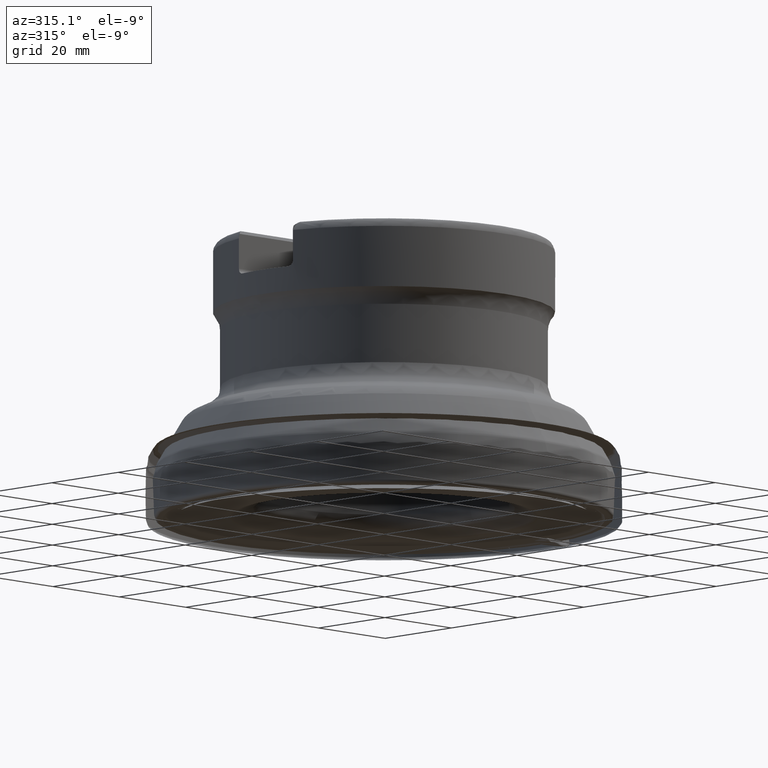
[diagram: clean part render]
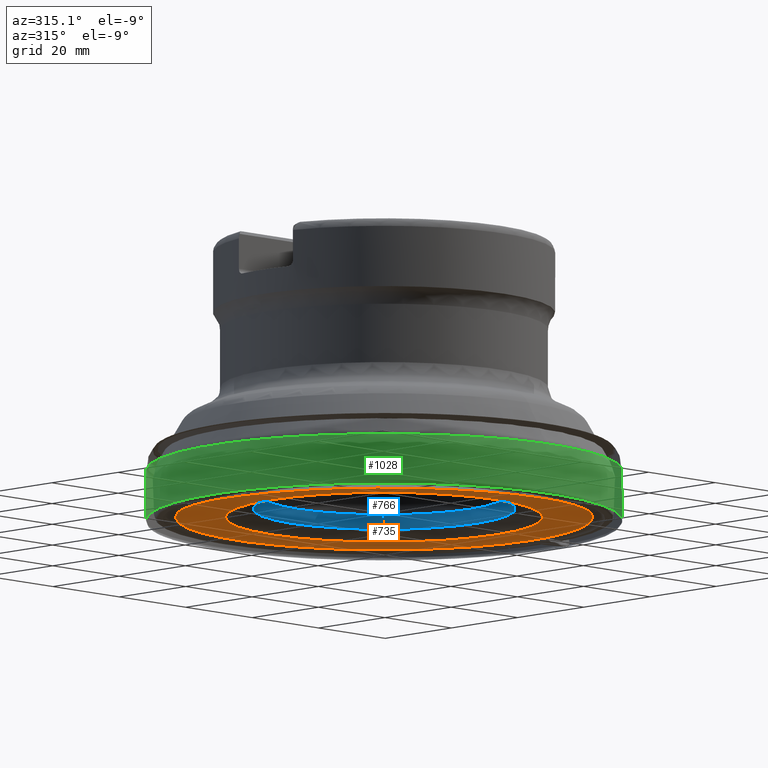
[diagram: same view with three faces highlighted in distinct colors, each labeled with its STEP entity id]
A machine part, auxiliary view with three faces highlighted in distinct colors.
Their STEP definitions:

[orange] entity #735 — the highlighted planar face has unit normal (0, -0, -1).
#430=FACE_BOUND('',#1319,.T.);
#431=FACE_BOUND('',#1320,.T.);
#580=CIRCLE('',#4607,46.0004528519196);
#581=CIRCLE('',#4608,33.8816349035423);
#735=ADVANCED_FACE('',(#430,#431),#1043,.T.);
#1043=PLANE('',#4609);
#1319=EDGE_LOOP('',(#1808));
#1320=EDGE_LOOP('',(#1809));
#1808=ORIENTED_EDGE('',*,*,#3500,.T.);
#1809=ORIENTED_EDGE('',*,*,#3501,.T.);
#3092=VERTEX_POINT('',#5809);
#3093=VERTEX_POINT('',#5811);
#3500=EDGE_CURVE('',#3092,#3092,#580,.T.);
#3501=EDGE_CURVE('',#3093,#3093,#581,.T.);
#4607=AXIS2_PLACEMENT_3D('',#5808,#4869,#4870);
#4608=AXIS2_PLACEMENT_3D('',#5810,#4871,#4872);
#4609=AXIS2_PLACEMENT_3D('',#5812,#4873,#4874);
#4869=DIRECTION('',(0.,-1.17145536458252E-15,-1.));
#4870=DIRECTION('',(0.,1.,-1.17375514461973E-15));
#4871=DIRECTION('',(0.,1.17145536458252E-15,1.));
#4872=DIRECTION('',(0.,1.,-1.17118904167227E-15));
#4873=DIRECTION('',(0.,-1.17145536458252E-15,-1.));
#4874=DIRECTION('',(0.,1.,-1.17137202715334E-15));
#5808=CARTESIAN_POINT('',(0.,1.64003751041553E-15,1.4));
#5809=CARTESIAN_POINT('',(0.,46.0004528519196,1.39999999999994));
#5810=CARTESIAN_POINT('',(0.,1.64003751041553E-15,1.4));
#5811=CARTESIAN_POINT('',(0.,33.8816349035423,1.39999999999996));
#5812=CARTESIAN_POINT('',(33.,1.64003751041553E-15,1.4));

[blue] entity #766 — the highlighted toroidal blend (fillet) surface has major radius 29 mm and minor (blend) radius 3 mm.
#472=FACE_BOUND('',#1371,.T.);
#473=FACE_BOUND('',#1372,.T.);
#559=TOROIDAL_SURFACE('',#4678,29.,3.);
#578=CIRCLE('',#4604,27.973939570023);
#603=CIRCLE('',#4646,26.);
#766=ADVANCED_FACE('',(#472,#473),#559,.T.);
#1371=EDGE_LOOP('',(#1905));
#1372=EDGE_LOOP('',(#1906));
#1905=ORIENTED_EDGE('',*,*,#3531,.F.);
#1906=ORIENTED_EDGE('',*,*,#3498,.F.);
#3090=VERTEX_POINT('',#5804);
#3117=VERTEX_POINT('',#5937);
#3498=EDGE_CURVE('',#3090,#3090,#578,.T.);
#3531=EDGE_CURVE('',#3117,#3117,#603,.T.);
#4604=AXIS2_PLACEMENT_3D('',#5803,#4863,#4864);
#4646=AXIS2_PLACEMENT_3D('',#5936,#4947,#4948);
#4678=AXIS2_PLACEMENT_3D('',#5991,#5019,#5020);
#4863=DIRECTION('',(0.,1.17145536458252E-15,1.));
#4864=DIRECTION('',(0.,1.,-1.17823040122955E-15));
#4947=DIRECTION('',(-5.85727682291262E-16,-1.17145536458252E-15,-1.));
#4948=DIRECTION('',(1.,-7.11112594850672E-31,-6.00481203222741E-16));
#5019=DIRECTION('',(-5.85727682291262E-16,-1.17145536458252E-15,-1.));
#5020=DIRECTION('',(1.,-6.74075480535533E-31,-5.96311194867027E-16));
#5803=CARTESIAN_POINT('',(-2.75680704173713E-16,3.78302344060791E-15,3.22933639213482));
#5804=CARTESIAN_POINT('',(-2.75680704173713E-16,27.973939570023,3.22933639213479));
#5936=CARTESIAN_POINT('',(7.0854473256427E-15,7.0854473256427E-15,6.04841425449255));
#5937=CARTESIAN_POINT('',(26.,7.08544732564268E-15,6.04841425449253));
#5991=CARTESIAN_POINT('',(1.37553123834368E-15,7.0854473256427E-15,6.04841425449255));

[green] entity #1028 — the highlighted face is a SurfaceOfRevolution surface.
#118=SURFACE_OF_REVOLUTION('',#4581,#139);
#139=AXIS1_PLACEMENT('',#17862,#5300);
#532=FACE_BOUND('',#1663,.T.);
#533=FACE_BOUND('',#1664,.T.);
#717=CIRCLE('',#4807,50.8);
#718=CIRCLE('',#4808,50.7999999448018);
#1028=ADVANCED_FACE('',(#532,#533),#118,.F.);
#1663=EDGE_LOOP('',(#3035));
#1664=EDGE_LOOP('',(#3036));
#3035=ORIENTED_EDGE('',*,*,#4098,.T.);
#3036=ORIENTED_EDGE('',*,*,#4099,.F.);
#3448=VERTEX_POINT('',#17837);
#3449=VERTEX_POINT('',#17847);
#4098=EDGE_CURVE('',#3448,#3448,#717,.T.);
#4099=EDGE_CURVE('',#3449,#3449,#718,.T.);
#4581=B_SPLINE_CURVE_WITH_KNOTS('',3,(#17848,#17849,#17850,#17851,#17852,
#17853,#17854,#17855,#17856,#17857,#17858,#17859,#17860,#17861),
 .UNSPECIFIED.,.F.,.F.,(4,1,1,1,1,1,1,1,1,1,1,4),(0.,0.033411319286246,
0.068579475049133,0.138915786574907,0.209252098100681,0.244420253863568,
0.279588409626454,0.349924721152228,0.490597344203776,0.631269967255324,
0.771942590306871,1.),.UNSPECIFIED.);
#4807=AXIS2_PLACEMENT_3D('',#17836,#5295,#5296);
#4808=AXIS2_PLACEMENT_3D('',#17846,#5298,#5299);
#5295=DIRECTION('',(0.,0.,1.));
#5296=DIRECTION('',(1.,0.,0.));
#5298=DIRECTION('',(0.,0.,1.));
#5299=DIRECTION('',(1.,0.,0.));
#5300=DIRECTION('',(0.,0.,1.));
#17836=CARTESIAN_POINT('',(0.,0.,11.4109217451152));
#17837=CARTESIAN_POINT('',(50.8,0.,11.4109217451152));
#17846=CARTESIAN_POINT('',(0.,0.,0.761602674214391));
#17847=CARTESIAN_POINT('',(50.7999999448018,0.,0.761602674214391));
#17848=CARTESIAN_POINT('',(50.5235458015304,-5.29257265120788,0.76160261400268));
#17849=CARTESIAN_POINT('',(50.5283283834617,-5.27555817950248,0.88262163021217));
#17850=CARTESIAN_POINT('',(50.5380095113932,-5.24061807661794,1.13102592498907));
#17851=CARTESIAN_POINT('',(50.5570676346315,-5.16966360475258,1.63421395194288));
#17852=CARTESIAN_POINT('',(50.5810542169802,-5.0601028683985,2.26814770771635));
#17853=CARTESIAN_POINT('',(50.6043506761055,-4.92579133631689,2.89735892323014));
#17854=CARTESIAN_POINT('',(50.622270564353,-4.80443489446489,3.39749772067847));
#17855=CARTESIAN_POINT('',(50.6396579139182,-4.67174437695134,3.89475571733017));
#17856=CARTESIAN_POINT('',(50.6676294887161,-4.43829878194784,4.76467428521028));
#17857=CARTESIAN_POINT('',(50.7005492708068,-4.10533104063736,6.00778498681985));
#17858=CARTESIAN_POINT('',(50.7280618937453,-3.70555261695302,7.49973167539704));
#17859=CARTESIAN_POINT('',(50.7449975973533,-3.22290028405529,9.30080124865517));
#17860=CARTESIAN_POINT('',(50.7401094731764,-2.87359421603582,10.6046017381222));
#17861=CARTESIAN_POINT('',(50.7304374437064,-2.6575772369195,11.4109217451152));
#17862=CARTESIAN_POINT('',(0.,0.,0.));